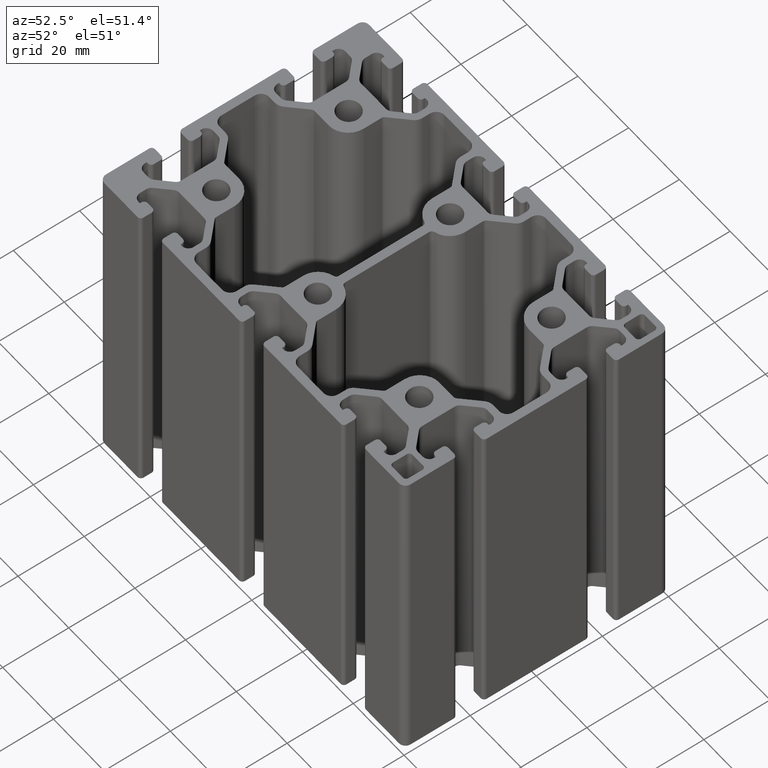
[diagram: clean part render]
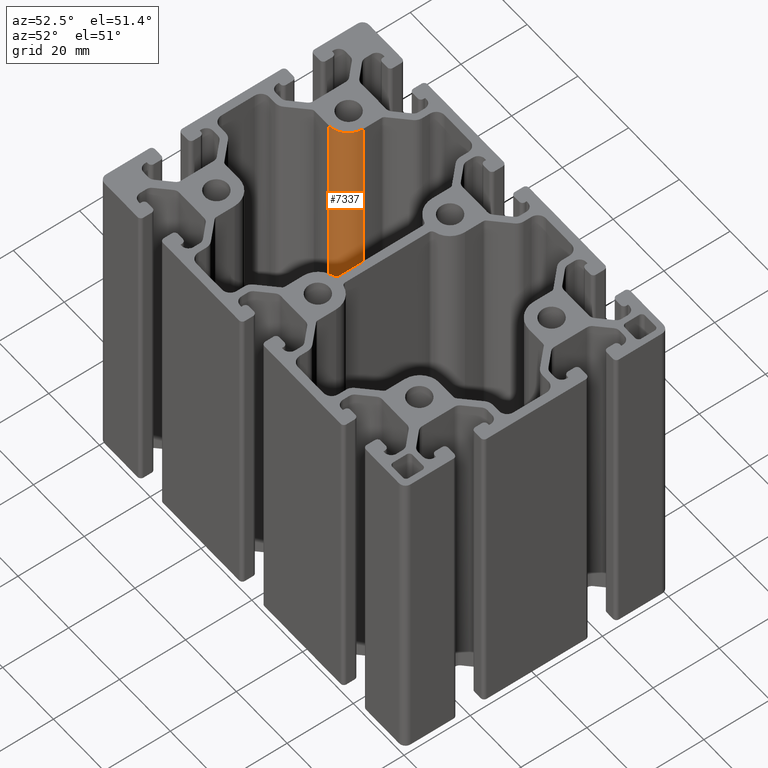
[diagram: same view with one face highlighted and labeled with its STEP entity id]
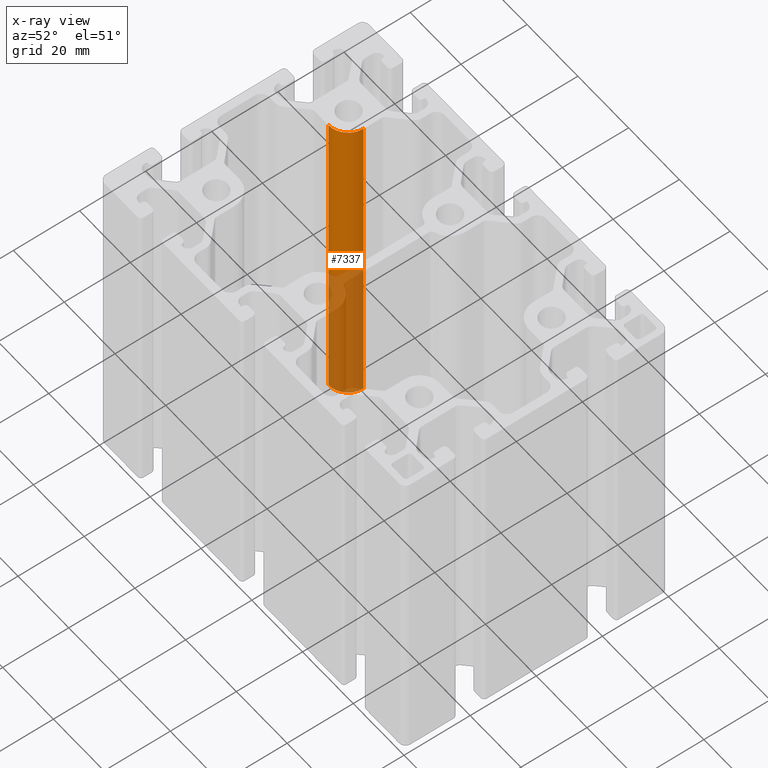
[diagram: x-ray of the same camera — body ghosted, the highlighted face saturated]
A machine part, auxiliary view. The second image highlights one B-rep face of the part: STEP entity #7337.
The next image is the same camera in x-ray: the body ghosted, the highlighted face saturated — about 46% of this face is hidden behind the body in this view.
In plain terms, the highlighted cylindrical surface (edge-blend (fillet) strip) has radius 6 mm, axis along (0, 0, 1).
Its self-contained STEP definition (entity closure, byte-faithful):
#265=FACE_OUTER_BOUND('',#649,.T.);
#649=EDGE_LOOP('',(#4949,#4950,#4951,#4952));
#1085=LINE('',#10894,#1853);
#1086=LINE('',#10900,#1854);
#1853=VECTOR('',#8611,100.);
#1854=VECTOR('',#8618,100.);
#2595=CIRCLE('',#7750,6.);
#2596=CIRCLE('',#7751,6.);
#2993=VERTEX_POINT('',#10890);
#2994=VERTEX_POINT('',#10892);
#2995=VERTEX_POINT('',#10896);
#2996=VERTEX_POINT('',#10898);
#3783=EDGE_CURVE('',#2994,#2993,#1085,.T.);
#3784=EDGE_CURVE('',#2993,#2995,#2595,.T.);
#3785=EDGE_CURVE('',#2996,#2994,#2596,.T.);
#3786=EDGE_CURVE('',#2996,#2995,#1086,.T.);
#4949=ORIENTED_EDGE('',*,*,#3784,.F.);
#4950=ORIENTED_EDGE('',*,*,#3783,.F.);
#4951=ORIENTED_EDGE('',*,*,#3785,.F.);
#4952=ORIENTED_EDGE('',*,*,#3786,.T.);
#7138=CYLINDRICAL_SURFACE('',#7749,6.);
#7337=ADVANCED_FACE('',(#265),#7138,.T.);
#7749=AXIS2_PLACEMENT_3D('',#10895,#8612,#8613);
#7750=AXIS2_PLACEMENT_3D('',#10897,#8614,#8615);
#7751=AXIS2_PLACEMENT_3D('',#10899,#8616,#8617);
#8611=DIRECTION('',(0.,0.,1.));
#8612=DIRECTION('center_axis',(0.,0.,1.));
#8613=DIRECTION('ref_axis',(0.,-1.,0.));
#8614=DIRECTION('center_axis',(0.,0.,1.));
#8615=DIRECTION('ref_axis',(0.,-1.,0.));
#8616=DIRECTION('center_axis',(0.,0.,-1.));
#8617=DIRECTION('ref_axis',(0.,-1.,0.));
#8618=DIRECTION('',(0.,0.,1.));
#10890=CARTESIAN_POINT('',(-39.5,13.5,100.));
#10892=CARTESIAN_POINT('',(-39.5,13.5,0.));
#10894=CARTESIAN_POINT('',(-39.5,13.5,0.));
#10895=CARTESIAN_POINT('Origin',(-39.5,19.5,0.));
#10896=CARTESIAN_POINT('',(-33.5,19.5,100.));
#10897=CARTESIAN_POINT('Origin',(-39.5,19.5,100.));
#10898=CARTESIAN_POINT('',(-33.5,19.5,0.));
#10899=CARTESIAN_POINT('Origin',(-39.5,19.5,0.));
#10900=CARTESIAN_POINT('',(-33.5,19.5,0.));